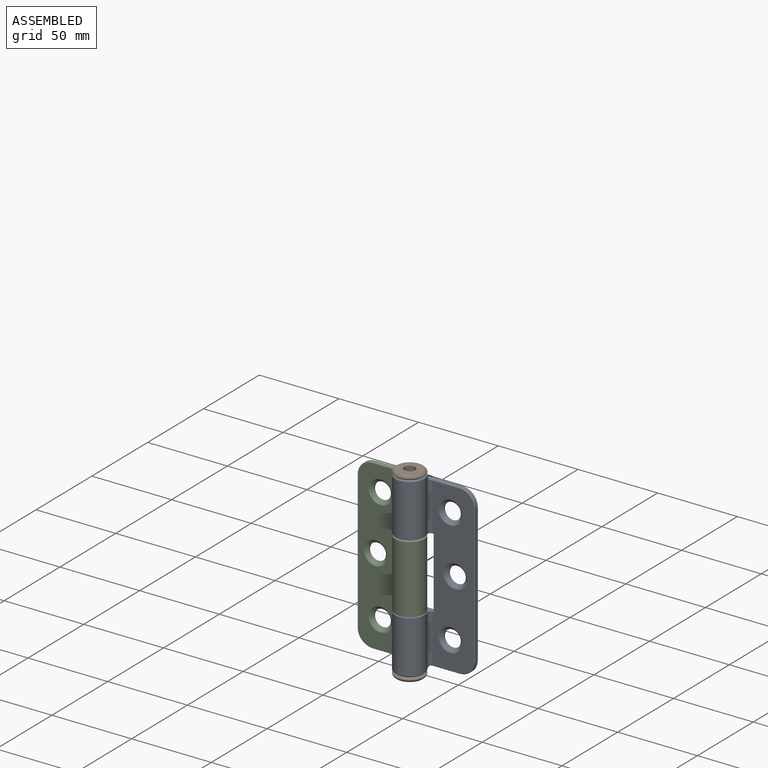
[diagram: assembled view]
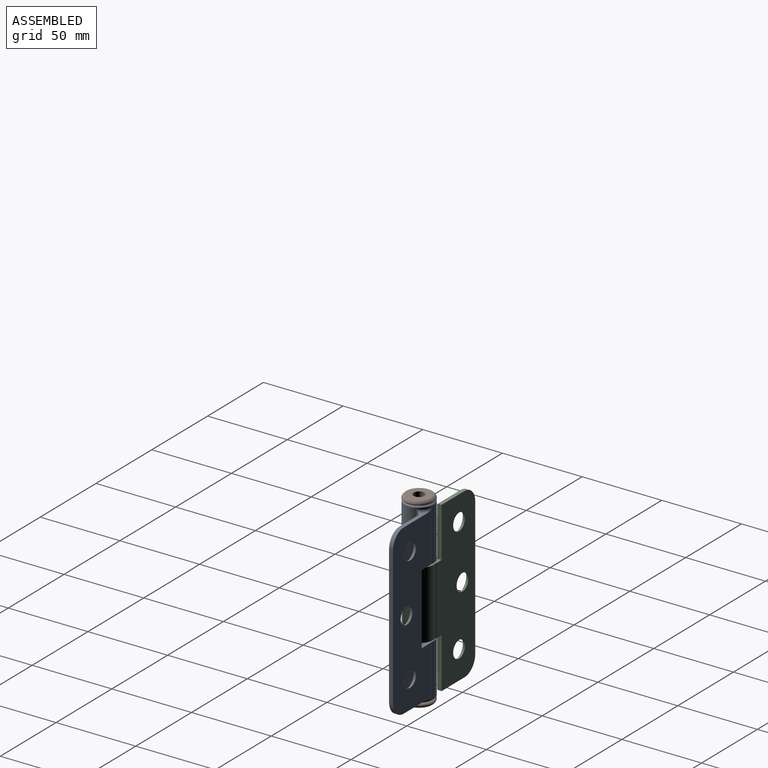
[diagram: assembled view, second angle]
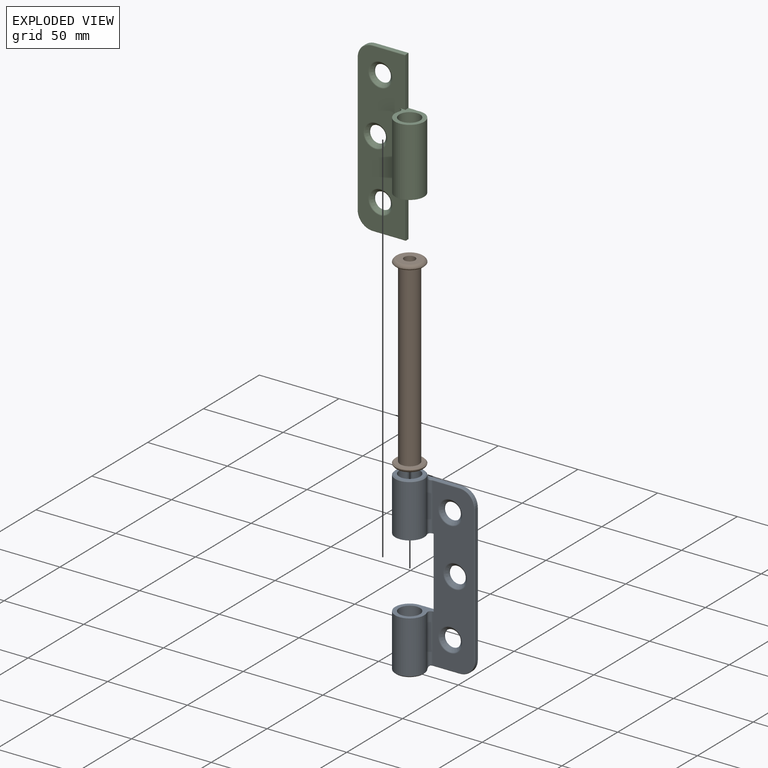
[diagram: exploded view]
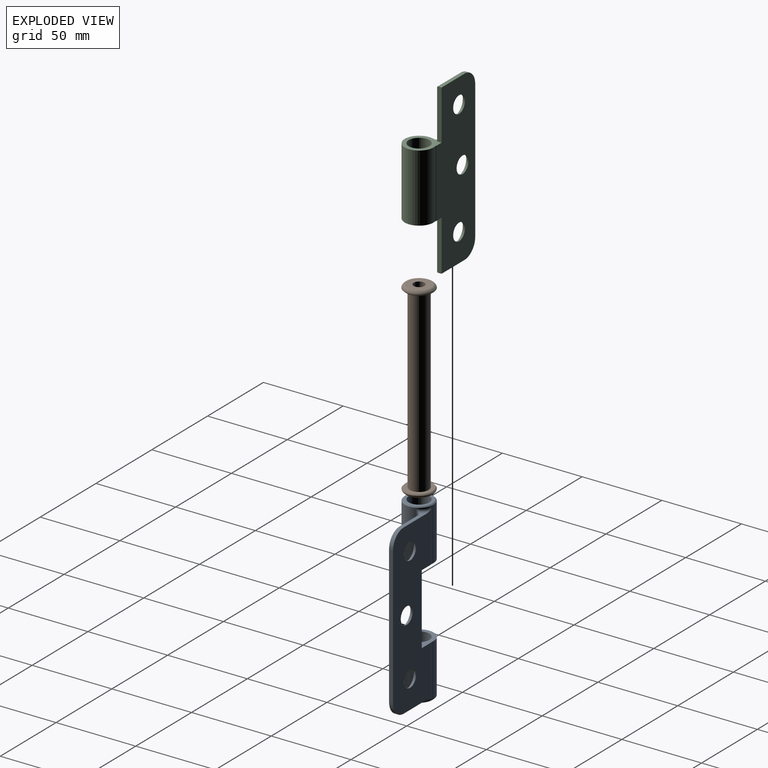
[diagram: exploded view, second angle]
ASSEMBLY  parts=3 mates=2
PART A: 46 faces, bbox 46.5x22.5x112.4 mm
  f0: cylinder r=9.06mm len=33.07mm, axis (0,0,-1), area 1585.7mm2, adj f1,f12,f13,f14,f45
  f1: plane 19.67x18.16mm, normal (0,0,-1), area 143.8mm2, adj f0,f2,f3,f4,f7,f12,f13,f32
  f2: cylinder r=6.52mm len=33.71mm, axis (0,0,-1), area 1381.7mm2, adj f1,f43
  f3: plane 104.6x25.85mm, normal (0,-1,0), area 2105mm2, adj f1,f7,f8,f13,f16,f28,f29,f30
  f4: plane 107.32x34.01mm, normal (0,1,0), area 2913.9mm2, adj f1,f5,f6,f7,f8,f14,f18,f19
  f5: plane 20.73x2.58mm, normal (0,0,1), area 43.8mm2, adj f4,f14,f26,f38,f40
  f6: plane 20.73x2.58mm, normal (0,0,-1), area 43.8mm2, adj f4,f18,f27,f34,f35
  f7: plane 44.23x2.76mm, normal (-1,0,0), area 121.9mm2, adj f1,f3,f4,f8
  f8: plane 8.53x4.62mm, normal (0,0,1), area 17.6mm2, adj f3,f4,f7,f15,f16,f31
  f9: cylinder r=9.06mm len=32.93mm, axis (0,0,-1), area 1572.1mm2, adj f10,f16,f17,f18,f44
  f10: plane 18.13x18.13mm, normal (0,0,1), area 124.4mm2, adj f9,f11,f15
  f11: cylinder r=6.52mm len=33.56mm, axis (0,0,-1), area 1375.7mm2, adj f10,f42
  f12: cylinder r=1.91mm len=32.32mm, axis (0,0,-1), area 23.5mm2, adj f0,f1,f14,f32
  f13: cylinder r=1.91mm len=32.32mm, axis (0,0,-1), area 115.6mm2, adj f0,f1,f3,f36,f38
  f14: torus R=10.97mm, axis (0,0,-1), area 19.1mm2, adj f0,f4,f5,f12,f32,f36
  f15: torus R=9.28mm, axis (0,0,1), area 1.8mm2, adj f8,f10,f16,f17,f31
  f16: cylinder r=1.91mm len=32.88mm, axis (0,0,-1), area 117.7mm2, adj f3,f8,f9,f15,f33,f34
  f17: cylinder r=1.91mm len=32.88mm, axis (0,0,1), area 23.9mm2, adj f9,f15,f18,f31
  f18: torus R=10.97mm, axis (0,0,-1), area 19.1mm2, adj f4,f6,f9,f17,f31,f33
  f19: plane 86.57x2.25mm, normal (1,0,0), area 194.6mm2, adj f4,f26,f27,f39
  f20: cylinder r=5.28mm len=10.57mm, axis (0,1,0), area 28.3mm2, adj f4,f25
  f21: cylinder r=5.28mm len=10.57mm, axis (0,1,0), area 28.3mm2, adj f4,f24
  f22: cylinder r=5.28mm len=10.57mm, axis (0,1,0), area 28.3mm2, adj f4,f23
  f23: cone r=7.19mm half-angle=45deg, axis (0,-1,0), area 89.2mm2, adj f22,f28
  f24: cone r=7.19mm half-angle=45deg, axis (0,-1,0), area 89.2mm2, adj f21,f29
  f25: cone r=7.19mm half-angle=45deg, axis (0,-1,0), area 89.2mm2, adj f20,f30
  f26: cylinder r=9.53mm len=9.53mm, axis (0,-1,0), area 33.6mm2, adj f4,f5,f19,f41
  f27: cylinder r=9.53mm len=9.53mm, axis (0,1,0), area 33.6mm2, adj f4,f6,f19,f37
  f28: torus R=7.56mm, axis (0,-1,0), area 31.7mm2, adj f3,f23
  f29: torus R=7.56mm, axis (0,-1,0), area 31.7mm2, adj f3,f24
  f30: torus R=7.56mm, axis (0,-1,0), area 31.7mm2, adj f3,f25
  f31: cylinder r=2.54mm len=32.09mm, axis (0,0,1), area 20.2mm2, adj f4,f8,f15,f17,f18
  f32: cylinder r=2.54mm len=31.54mm, axis (0,0,-1), area 19.8mm2, adj f1,f4,f12,f14
  f33: bspline ~2.99x2.41mm, area 1.7mm2, adj f16,f18,f34
  f34: torus R=2.41mm, axis (0,0,-1), area 0.9mm2, adj f6,f16,f33,f35
  f35: cylinder r=0.51mm len=16.83mm, axis (-1,0,0), area 13.4mm2, adj f3,f6,f34,f37
  f36: bspline ~2.99x2.41mm, area 1.1mm2, adj f13,f14,f38
  f37: torus R=9.02mm, axis (0,-1,0), area 11.7mm2, adj f3,f27,f35,f39
  f38: torus R=2.41mm, axis (0,0,-1), area 0.9mm2, adj f5,f13,f36,f40
  f39: cylinder r=0.51mm len=86.57mm, axis (0,0,-1), area 69.1mm2, adj f3,f19,f37,f41
  f40: cylinder r=0.51mm len=16.83mm, axis (1,0,0), area 13.4mm2, adj f3,f5,f38,f41
  f41: torus R=9.02mm, axis (0,-1,0), area 11.7mm2, adj f3,f26,f39,f40
  f42: plane 16.86x16.86mm, normal (0,0,-1), area 89.5mm2, adj f11,f44
  f43: plane 16.86x16.86mm, normal (0,0,1), area 89.5mm2, adj f2,f45
  f44: cone r=9.06mm half-angle=45deg, axis (0,0,1), area 49.4mm2, adj f9,f42
  f45: cone r=8.43mm half-angle=45deg, axis (0,0,-1), area 49.4mm2, adj f0,f43
PART B: 14 faces, bbox 19.8x19.8x117.7 mm
  f0: plane 17.01x17.01mm, normal (0,0,1), area 115.2mm2, adj f2,f13
  f1: plane 17.02x17.02mm, normal (0,0,-1), area 115.5mm2, adj f2,f12
  f2: cylinder r=5.97mm len=112.48mm, axis (0,0,-1), area 4219.6mm2, adj f0,f1
  f3: plane 13.21x13.21mm, normal (0,0,-1), area 100.1mm2, adj f5,f10
  f4: plane 13.21x13.21mm, normal (0,0,1), area 100.1mm2, adj f5,f11
  f5: cylinder r=3.43mm len=117.56mm, axis (0,0,-1), area 2534mm2, adj f3,f4
  f6: cone r=9.15mm half-angle=45deg, axis (0,0,1), area 23.1mm2, adj f9,f10
  f7: cone r=6.61mm half-angle=45deg, axis (0,0,-1), area 19.1mm2, adj f8,f11
  f8: torus R=7.37mm, axis (0,0,1), area 74.1mm2, adj f7,f12
  f9: torus R=7.37mm, axis (0,0,-1), area 67.9mm2, adj f6,f13
  f10: torus R=7.06mm, axis (0,0,-1), area 87.5mm2, adj f3,f6
  f11: torus R=7.11mm, axis (0,0,1), area 90.5mm2, adj f4,f7
  f12: cone r=9.14mm half-angle=43.7deg, axis (0,0,1), area 50.9mm2, adj f1,f8
  f13: cone r=8.5mm half-angle=42deg, axis (0,0,-1), area 52.3mm2, adj f0,f9
PART C: 30 faces, bbox 47.2x18.2x107.2 mm
  f0: plane 31.79x2.76mm, normal (1,0,0), area 87.6mm2, adj f1,f2,f5,f10,f24
  f1: plane 104.6x29.67mm, normal (0,-1,0), area 2366.8mm2, adj f0,f3,f7,f10,f20,f21,f22,f24
  f2: plane 105.62x34.54mm, normal (0,1,0), area 3071.1mm2, adj f0,f3,f4,f5,f6,f7,f10,f11
  f3: plane 20.03x18.16mm, normal (0,0,1), area 135.5mm2, adj f1,f2,f7,f8,f9,f19,f23,f29
  f4: plane 20.65x2.25mm, normal (0,0,1), area 46.4mm2, adj f2,f7,f17,f26
  f5: plane 20.65x2.25mm, normal (0,0,-1), area 46.4mm2, adj f0,f2,f18,f24
  f6: plane 86.57x2.25mm, normal (-1,0,0), area 194.6mm2, adj f2,f17,f18,f27
  f7: plane 31.24x2.76mm, normal (1,0,0), area 86.1mm2, adj f1,f2,f3,f4,f26
  f8: cylinder r=9.06mm len=42.58mm, axis (0,0,-1), area 2000.2mm2, adj f3,f10,f19,f29
  f9: cylinder r=6.52mm len=42.58mm, axis (0,0,-1), area 1745.6mm2, adj f3,f10
  f10: plane 20.03x18.16mm, normal (0,0,-1), area 135.5mm2, adj f0,f1,f2,f8,f9,f19,f23,f29
  f11: cylinder r=5.28mm len=10.57mm, axis (0,1,0), area 28.3mm2, adj f2,f16
  f12: cylinder r=5.28mm len=10.57mm, axis (0,1,0), area 28.3mm2, adj f2,f14
  f13: cylinder r=5.28mm len=10.57mm, axis (0,1,0), area 28.3mm2, adj f2,f15
  f14: cone r=5.28mm half-angle=45deg, axis (0,-1,0), area 89.2mm2, adj f12,f20
  f15: cone r=5.28mm half-angle=45deg, axis (0,-1,0), area 89.2mm2, adj f13,f21
  f16: cone r=5.28mm half-angle=45deg, axis (0,-1,0), area 89.2mm2, adj f11,f22
  f17: cylinder r=9.53mm len=9.53mm, axis (0,1,0), area 33.6mm2, adj f2,f4,f6,f28
  f18: cylinder r=9.53mm len=9.53mm, axis (0,-1,0), area 33.6mm2, adj f2,f5,f6,f25
  f19: cylinder r=2.54mm len=42.58mm, axis (0,0,1), area 40.2mm2, adj f3,f8,f10,f23
  f20: torus R=7.56mm, axis (0,1,0), area 31.7mm2, adj f1,f14
  f21: torus R=7.56mm, axis (0,1,0), area 31.7mm2, adj f1,f15
  f22: torus R=7.56mm, axis (0,1,0), area 31.7mm2, adj f1,f16
  f23: cylinder r=2.54mm len=42.58mm, axis (0,0,1), area 25.5mm2, adj f2,f3,f10,f19
  f24: cylinder r=0.51mm len=20.65mm, axis (-1,0,0), area 16.5mm2, adj f0,f1,f5,f25
  f25: torus R=9.02mm, axis (0,1,0), area 11.7mm2, adj f1,f18,f24,f27
  f26: cylinder r=0.51mm len=20.65mm, axis (1,0,0), area 16.5mm2, adj f1,f4,f7,f28
  f27: cylinder r=0.51mm len=86.57mm, axis (0,0,-1), area 69.1mm2, adj f1,f6,f25,f28
  f28: torus R=9.02mm, axis (0,1,0), area 11.7mm2, adj f1,f17,f26,f27
  f29: cylinder r=2.54mm len=42.58mm, axis (0,0,-1), area 206mm2, adj f1,f3,f8,f10
PLACE A t=(-17.22,30.46,-9.84)mm
PLACE B t=(-17.15,30.58,-10.03)mm
PLACE C t=(-17.22,30.46,-10.02)mm
MATE fastened B.f2 <-> A.f0  axis (0,0,1) through (-24.16,-9.1,57.15)mm
MATE revolute A.f0 <-> C.f8  axis (0,0,-1) through (-24.16,-9.1,20.58)mm
